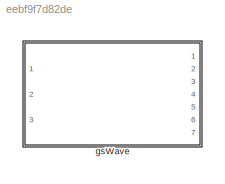
MODEL slx_eebf9f7d82de
KIND library
CONFIG AbsTol = auto
CONFIG EnableMultiTasking = off
CONFIG FixedStep = auto
CONFIG MaxStep = auto
CONFIG MinStep = auto
CONFIG RelTol = 1e-3
CONFIG SampleTimeConstraint = Unconstrained
CONFIG SolverName = VariableStepAuto
CONFIG StartTime = 0.0
CONFIG StopTime = 10.0
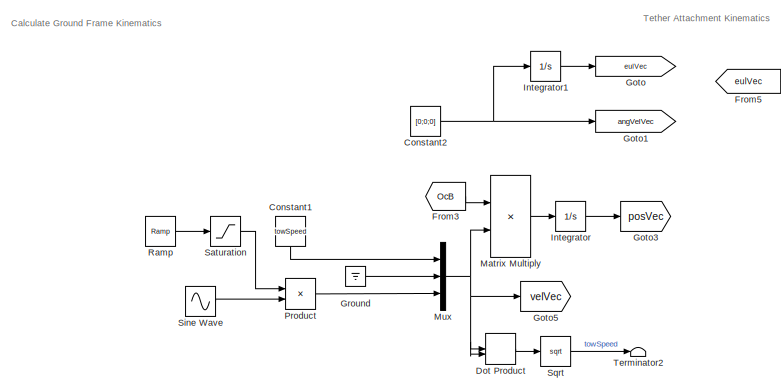
[diagram: gsWave - part 1/3, middle left region]
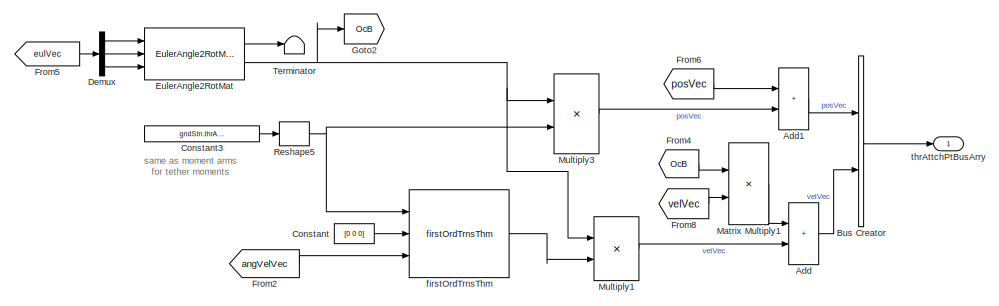
[diagram: gsWave - part 2/3, top center region]
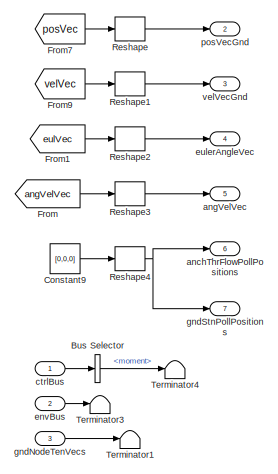
[diagram: gsWave - part 3/3, right side, full height]
BLOCK [SubSystem] gsWave
  Ports = [3, 7]
  RequestExecContextInheritance = off
BLOCK [Sum] gsWave/Add
  IconShape = rectangular
  Ports = [2, 1]
BLOCK [Sum] gsWave/Add1
  IconShape = rectangular
  Ports = [2, 1]
BLOCK [BusCreator] gsWave/Bus Creator
  DisplayOption = bar
  InheritFromInputs = on
  Inputs = 2
  NonVirtualBus = on
  OutDataTypeStr = Bus: thrAttachPtKinematicsBus
  Ports = [2, 1]
BLOCK [BusSelector] gsWave/Bus Selector
  OutputSignals = moment
  Ports = [1, 1]
BLOCK [Constant] gsWave/Constant
  Value = [0 0 0]
BLOCK [Constant] gsWave/Constant1
  NameLocation = left
  Value = towSpeed
BLOCK [Constant] gsWave/Constant2
  Value = [0;0;0]
BLOCK [Constant] gsWave/Constant3
  Value = gndStn.thrAttach.posVec.Value
BLOCK [Constant] gsWave/Constant9
  Value = [0,0,0]
BLOCK [Demux] gsWave/Demux
  Outputs = 3
  Ports = [1, 3]
BLOCK [DotProduct] gsWave/Dot Product
  OutDataTypeStr = Inherit: Inherit via internal rule
BLOCK [Reference] gsWave/EulerAngle2RotMat  REF=eulAng2RotMat_ul/EulerAngle2RotMat
  Ports = [3, 2]
  SourceBlock = eulAng2RotMat_ul/EulerAngle2RotMat
  SourceType = SubSystem
BLOCK [From] gsWave/From
  GotoTag = angVelVec
BLOCK [From] gsWave/From1
  GotoTag = eulVec
BLOCK [From] gsWave/From2
  GotoTag = angVelVec
BLOCK [From] gsWave/From3
  GotoTag = OcB
BLOCK [From] gsWave/From4
  GotoTag = OcB
BLOCK [From] gsWave/From5
  GotoTag = eulVec
BLOCK [From] gsWave/From6
  GotoTag = posVec
BLOCK [From] gsWave/From7
  GotoTag = posVec
BLOCK [From] gsWave/From8
  GotoTag = velVec
BLOCK [From] gsWave/From9
  GotoTag = velVec
BLOCK [Goto] gsWave/Goto
  GotoTag = eulVec
BLOCK [Goto] gsWave/Goto1
  GotoTag = angVelVec
BLOCK [Goto] gsWave/Goto2
  GotoTag = OcB
BLOCK [Goto] gsWave/Goto3
  GotoTag = posVec
BLOCK [Goto] gsWave/Goto5
  GotoTag = velVec
BLOCK [Ground] gsWave/Ground
BLOCK [Integrator] gsWave/Integrator
  InitialCondition = gndStn.initPosVecGnd.Value
  Ports = [1, 1]
BLOCK [Integrator] gsWave/Integrator1
  InitialCondition = gndStn.initEulAng.Value
  Ports = [1, 1]
BLOCK [Product] gsWave/Matrix Multiply
  Multiplication = Matrix(*)
  Ports = [2, 1]
BLOCK [Product] gsWave/Matrix Multiply1
  Multiplication = Matrix(*)
  Ports = [2, 1]
BLOCK [Product] gsWave/Multiply1
  Multiplication = Matrix(*)
  Ports = [2, 1]
BLOCK [Product] gsWave/Multiply3
  Multiplication = Matrix(*)
  Ports = [2, 1]
BLOCK [Mux] gsWave/Mux
  DisplayOption = bar
  Inputs = 3
  Ports = [3, 1]
BLOCK [Product] gsWave/Product
  Ports = [2, 1]
BLOCK [Reference] gsWave/Ramp  REF=simulink/Sources/Ramp
  Ports = [0, 1]
  SourceBlock = simulink/Sources/Ramp
  SourceProductBaseCode = SL
  SourceType = Ramp
BLOCK [Reshape] gsWave/Reshape
  OutputDimensionality = Column vector (2-D)
  Ports = [1, 1]
BLOCK [Reshape] gsWave/Reshape1
  OutputDimensionality = Column vector (2-D)
  Ports = [1, 1]
BLOCK [Reshape] gsWave/Reshape2
  OutputDimensionality = Column vector (2-D)
  Ports = [1, 1]
BLOCK [Reshape] gsWave/Reshape3
  OutputDimensionality = Column vector (2-D)
  Ports = [1, 1]
BLOCK [Reshape] gsWave/Reshape4
  OutputDimensionality = Column vector (2-D)
  Ports = [1, 1]
BLOCK [Reshape] gsWave/Reshape5
  OutputDimensionality = Column vector (2-D)
  Ports = [1, 1]
BLOCK [Saturate] gsWave/Saturation
  LowerLimit = 0
  UpperLimit = 1
BLOCK [Sin] gsWave/Sine Wave
  Amplitude = gndStn.waveAmplitude.Value*2*pi/gndStn.wavePeriod.Value
  Frequency = 2*pi/gndStn.wavePeriod.Value
  Ports = [0, 1]
  SampleTime = 0
BLOCK [Sqrt] gsWave/Sqrt
BLOCK [Terminator] gsWave/Terminator
BLOCK [Terminator] gsWave/Terminator1
BLOCK [Terminator] gsWave/Terminator2
BLOCK [Terminator] gsWave/Terminator3
BLOCK [Terminator] gsWave/Terminator4
BLOCK [Outport] gsWave/anchThrFlowPollPositions
  Port = 6
  VectorParamsAs1DForOutWhenUnconnected = off
BLOCK [Outport] gsWave/angVelVec
  Port = 5
  VectorParamsAs1DForOutWhenUnconnected = off
BLOCK [Inport] gsWave/ctrlBus
  OutDataTypeStr = Bus: gndStnCtrlBus
BLOCK [Inport] gsWave/envBus
  OutDataTypeStr = Bus: envBus
  Port = 2
BLOCK [Outport] gsWave/eulerAngleVec
  Port = 4
  VectorParamsAs1DForOutWhenUnconnected = off
BLOCK [Reference] gsWave/firstOrdTrnsThm  REF=firstOrdTrnsThm_ul/firstOrdTrnsThm
  Ports = [3, 1]
  SourceBlock = firstOrdTrnsThm_ul/firstOrdTrnsThm
  SourceType = SubSystem
BLOCK [Inport] gsWave/gndNodeTenVecs
  Port = 3
BLOCK [Outport] gsWave/gndStnPollPositions
  Port = 7
  VectorParamsAs1DForOutWhenUnconnected = off
BLOCK [Outport] gsWave/posVecGnd
  Port = 2
  VectorParamsAs1DForOutWhenUnconnected = off
BLOCK [Outport] gsWave/thrAttchPtBusArry
  VectorParamsAs1DForOutWhenUnconnected = off
BLOCK [Outport] gsWave/velVecGnd
  Port = 3
  VectorParamsAs1DForOutWhenUnconnected = off
ANNOTATION gsWave: Calculate Ground Frame Kinematics
ANNOTATION gsWave: Tether Attachment Kinematics
ANNOTATION gsWave: same as moment arms for tether moments
LINE gsWave/Add1:1 -> gsWave/Bus Creator:1
LINE gsWave/Add:1 -> gsWave/Bus Creator:2
LINE gsWave/Bus Creator:1 -> gsWave/thrAttchPtBusArry:1
LINE gsWave/Bus Selector:1 -> gsWave/Terminator4:1
LINE gsWave/Constant1:1 -> gsWave/Mux:1
NET gsWave/Constant2:1 -> gsWave/Goto1:1, gsWave/Integrator1:1
LINE gsWave/Constant3:1 -> gsWave/Reshape5:1
LINE gsWave/Constant9:1 -> gsWave/Reshape4:1
LINE gsWave/Constant:1 -> gsWave/firstOrdTrnsThm:2
LINE gsWave/Demux:1 -> gsWave/EulerAngle2RotMat:1
LINE gsWave/Demux:2 -> gsWave/EulerAngle2RotMat:2
LINE gsWave/Demux:3 -> gsWave/EulerAngle2RotMat:3
LINE gsWave/Dot Product:1 -> gsWave/Sqrt:1
LINE gsWave/EulerAngle2RotMat:1 -> gsWave/Terminator:1
NET gsWave/EulerAngle2RotMat:2 -> gsWave/Goto2:1, gsWave/Multiply1:1, gsWave/Multiply3:1
LINE gsWave/From1:1 -> gsWave/Reshape2:1
LINE gsWave/From2:1 -> gsWave/firstOrdTrnsThm:3
LINE gsWave/From3:1 -> gsWave/Matrix Multiply:1
LINE gsWave/From4:1 -> gsWave/Matrix Multiply1:1
LINE gsWave/From5:1 -> gsWave/Demux:1
LINE gsWave/From6:1 -> gsWave/Add1:1
LINE gsWave/From7:1 -> gsWave/Reshape:1
LINE gsWave/From8:1 -> gsWave/Matrix Multiply1:2
LINE gsWave/From9:1 -> gsWave/Reshape1:1
LINE gsWave/From:1 -> gsWave/Reshape3:1
LINE gsWave/Ground:1 -> gsWave/Mux:2
LINE gsWave/Integrator1:1 -> gsWave/Goto:1
LINE gsWave/Integrator:1 -> gsWave/Goto3:1
LINE gsWave/Matrix Multiply1:1 -> gsWave/Add:1
LINE gsWave/Matrix Multiply:1 -> gsWave/Integrator:1
LINE gsWave/Multiply1:1 -> gsWave/Add:2
LINE gsWave/Multiply3:1 -> gsWave/Add1:2
NET gsWave/Mux:1 -> gsWave/Dot Product:1, gsWave/Dot Product:2, gsWave/Goto5:1, gsWave/Matrix Multiply:2
LINE gsWave/Product:1 -> gsWave/Mux:3
LINE gsWave/Ramp:1 -> gsWave/Saturation:1
LINE gsWave/Reshape1:1 -> gsWave/velVecGnd:1
LINE gsWave/Reshape2:1 -> gsWave/eulerAngleVec:1
LINE gsWave/Reshape3:1 -> gsWave/angVelVec:1
NET gsWave/Reshape4:1 -> gsWave/anchThrFlowPollPositions:1, gsWave/gndStnPollPositions:1
NET gsWave/Reshape5:1 -> gsWave/Multiply3:2, gsWave/firstOrdTrnsThm:1
LINE gsWave/Reshape:1 -> gsWave/posVecGnd:1
LINE gsWave/Saturation:1 -> gsWave/Product:1
LINE gsWave/Sine Wave:1 -> gsWave/Product:2
LINE gsWave/Sqrt:1 -> gsWave/Terminator2:1
LINE gsWave/ctrlBus:1 -> gsWave/Bus Selector:1
LINE gsWave/envBus:1 -> gsWave/Terminator3:1
LINE gsWave/firstOrdTrnsThm:1 -> gsWave/Multiply1:2
LINE gsWave/gndNodeTenVecs:1 -> gsWave/Terminator1:1
note: NET lines group one-source signal fan-out (src -> all destinations, sorted); 1:1 wires keep LINE
